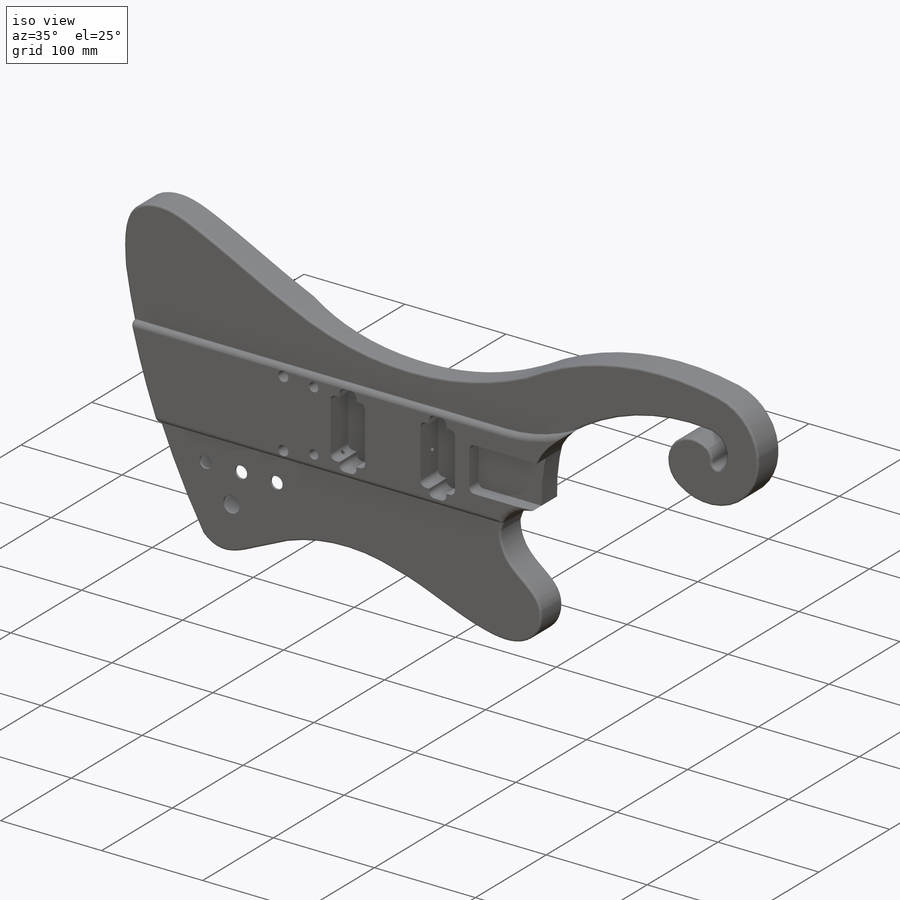
[diagram: iso view]
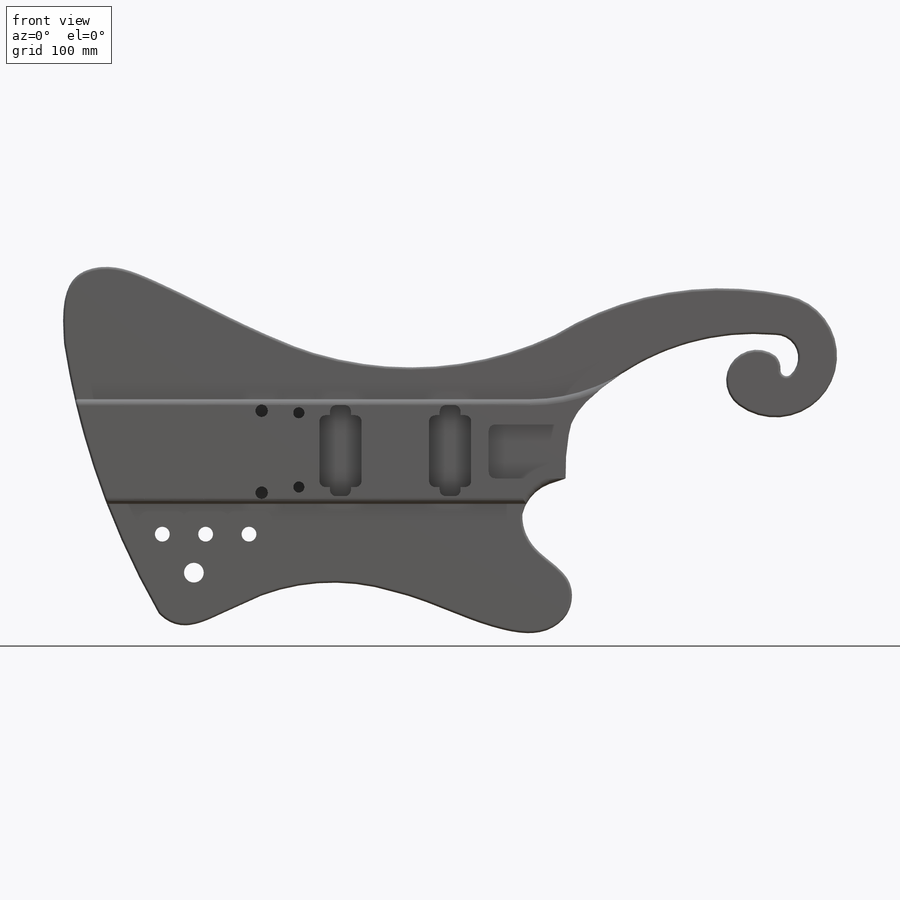
[diagram: front view]
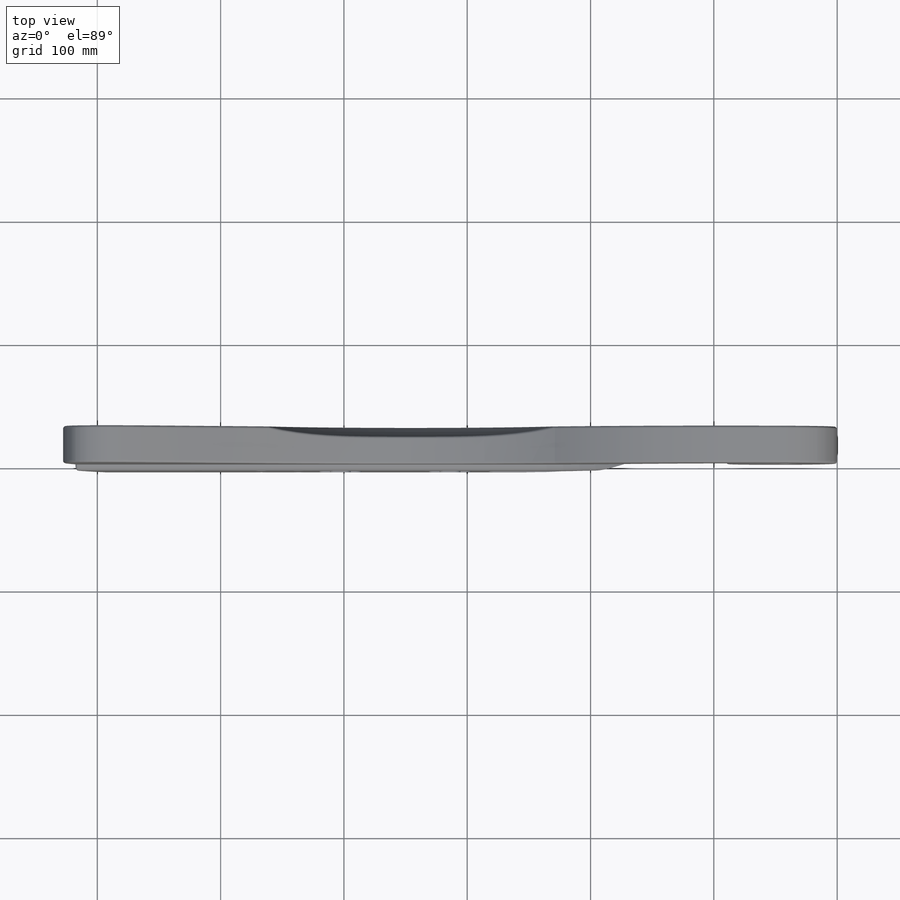
[diagram: top view]
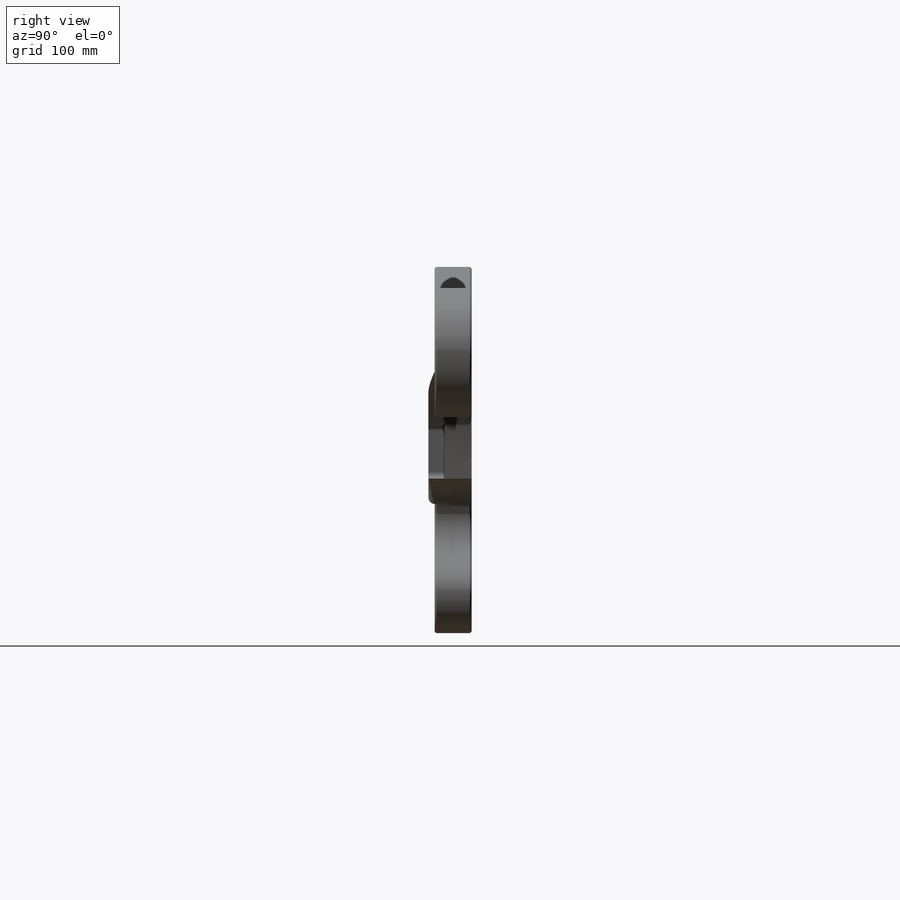
[diagram: right view]
SOLIDWORKS PART (.sldprt)
format: sldprt  version: not decoded by parser v0  size: 1,188,352 bytes
history: native  units: mm
features: sketch x12, extrude x6, cut_extrude x4, fillet x4, material x1, hole x1 (+11 scaffold rows collapsed)
feature tree (39):
  scaffold x11  (default folders/planes/origin — collapsed)
  material  "Mahogany"
  sketch  "Sketch1"  dims[c1.D2=5.0mm c1.D3=5.0mm c1.D4=5.0mm c1.D5=5.0mm c1.D6=5.0mm c1.D7=8.0mm c1.D8=9.0mm c1.D9=6.0mm c1.D10=~271.868362mm c1.D11=~258.078711mm c1.D12=~50.002523mm c1.D13=~25.001261mm c1.D14=~14.192411mm c1.D15=~18.499867mm c1.D16=~635.478987mm c1.D17=~195.203745mm c1.D18=~165.851838mm c1.D19=~34.205996mm c1.D20=~185.267522mm c1.D21=~12.965243mm c1.D22=~13.013087mm c1.D23=~14.247136mm c1.D24=~15.869195mm c1.D25=~9.965243mm c1.D26=~10.013087mm c1.D27=~11.247136mm c1.D28=~12.869195mm c2.D7=8.0mm c2.D8=9.0mm c2.D9=6.0mm c2.D10=~271.868362mm c2.D11=~258.078711mm c2.D12=~50.002523mm c2.D13=~14.192411mm c2.D14=~18.499867mm c2.D15=~635.478987mm c2.D16=~165.851838mm c2.D17=~34.205996mm c2.D18=~185.267522mm c2.D19=~12.965243mm c2.D20=~13.013087mm c2.D21=~14.247136mm c2.D22=~15.869195mm c2.D99=~195.203745mm c2.D102=55.0mm c2.D103=~195.203745mm c2.D105=10.0mm c2.D23=~5.578529mm c2.D24=~14.219995mm c2.D25=~40.16607mm c2.D26=~54.321265mm c2.D27=~69.008297mm c2.D28=~77.649762mm c2.D29=~85.067554mm c2.D30=~86.085478mm c2.D31=~94.521194mm c2.D32=~103.16266mm c2.D33=~114.052749mm c2.D34=~129.077369mm c2.D35=~129.969038mm c2.D36=~144.700184mm c2.D37=~145.558651mm c2.D38=~148.403331mm c2.D39=~154.029008mm c2.D40=~165.195676mm c2.D41=~168.988413mm c2.D42=~171.125716mm c2.D43=~178.019498mm c2.D44=~179.768124mm c2.D45=~181.934761mm c2.D46=~183.416683mm c2.D47=~305.646927mm c2.D48=~320.075889mm c2.D49=~332.496817mm c2.D50=~334.982732mm c2.D51=~339.854026mm c2.D52=~349.889576mm c2.D53=~354.002452mm c2.D54=~358.986955mm c2.D55=~360.521471mm c2.D56=~362.356388mm c2.D57=~401.00008mm c2.D58=~8.974664mm c2.D59=~11.292903mm c2.D60=~19.934368mm c2.D61=~36.599019mm c2.D62=~39.584651mm c2.D63=~42.226814mm c2.D64=~51.471289mm c2.D65=~51.800108mm c2.D66=~53.349022mm c2.D67=~54.739619mm c2.D68=~62.483185mm c2.D69=~66.744488mm c2.D70=~87.002364mm c2.D71=~88.537605mm c2.D72=~90.443064mm c2.D73=~92.270451mm c2.D74=~93.443339mm c2.D75=~93.590908mm c2.D76=~99.260997mm c2.D77=~111.035514mm c2.D78=~124.655442mm c2.D79=~125.99953mm c2.D80=~129.357289mm c2.D81=~129.446766mm c2.D82=~130.085259mm c2.D83=~137.421983mm c2.D84=~139.710715mm c2.D85=~150.049887mm c2.D86=~156.55887mm c2.D87=~157.724628mm c2.D88=~159.356835mm c2.D89=~159.587843mm c2.D90=~164.751714mm c2.D91=~167.006111mm c2.D92=~192.44295mm c2.D93=~192.879936mm c2.D94=~217.141788mm c2.D95=~226.912804mm c3.D23=~5.578529mm c3.D24=~14.219995mm c3.D25=~40.16607mm c3.D26=~54.321265mm c3.D27=~69.008297mm c3.D28=~85.067554mm c3.D29=~94.521194mm c3.D30=~114.052749mm c3.D31=~129.077369mm c3.D32=~129.969038mm c3.D33=~144.700184mm c3.D34=~145.558651mm c3.D35=~148.403331mm c3.D36=~154.029008mm c3.D37=~165.195676mm c3.D38=~168.988413mm c3.D39=~171.125716mm c3.D40=~178.019498mm c3.D41=~181.934761mm c3.D42=~183.416683mm c3.D43=~305.646927mm c3.D44=~339.854026mm c3.D45=~401.00008mm c3.D46=~8.974664mm c3.D47=~36.599019mm c3.D48=~39.584651mm c3.D49=~42.226814mm c3.D50=~51.471289mm c3.D51=~51.800108mm c3.D52=~53.349022mm c3.D53=~66.744488mm c3.D54=~87.002364mm c3.D55=~88.537605mm c3.D56=~90.443064mm c3.D57=~93.443339mm c3.D58=~99.260997mm c3.D59=~111.035514mm c3.D60=~124.655442mm c3.D61=~125.99953mm c3.D62=~129.357289mm c3.D63=~129.446766mm c3.D64=~137.421983mm c3.D65=~139.710715mm c3.D66=~150.049887mm c3.D67=~156.55887mm c3.D68=~157.724628mm c3.D69=~159.356835mm c3.D70=~192.44295mm c3.D71=~192.879936mm c3.D72=~217.141788mm c3.D73=~226.912804mm c3.D74=~26.723956mm c3.D75=~32.568188mm c3.D76=~40.128093mm c3.D77=~42.13718mm c3.D78=~43.771352mm c3.D79=~48.35806mm c3.D80=~68.42916mm c3.D81=~73.260682mm c3.D82=~76.954856mm c3.D83=~77.348202mm c3.D84=~78.464711mm c3.D85=~86.929027mm c3.D86=~88.500261mm c3.D87=~98.181518mm c3.D88=~105.428894mm c3.D89=~128.642463mm c3.D90=~130.28158mm c3.D91=~137.359396mm c3.D92=~151.856031mm c3.D93=~152.667077mm c3.D94=~160.607955mm c3.D95=~162.220638mm c3.D96=~195.951419mm c3.D97=~350.926606mm c3.D98=~4.184071mm c3.D99=~11.000447mm c3.D100=~14.714739mm c3.D101=~18.098924mm c3.D102=~22.708736mm c3.D103=~25.505894mm c3.D104=~30.591726mm c3.D105=~31.334554mm c3.D106=~39.969213mm c3.D107=~42.013267mm c3.D108=~45.013267mm c3.D109=~47.707006mm c3.D110=~49.655978mm c3.D111=~54.843932mm c3.D112=~57.542252mm c3.D113=~60.54989mm c3.D114=~61.909775mm c3.D115=~62.249509mm c3.D116=~63.896645mm c3.D117=~66.226736mm c3.D118=~88.771362mm c3.D119=~88.998455mm c3.D120=~89.964465mm c3.D121=~96.778743mm c3.D122=~96.836928mm c3.D123=~98.721805mm c3.D124=~99.380976mm c3.D125=~99.957174mm c3.D126=~102.008738mm c3.D127=~102.957174mm c3.D128=~105.896419mm c3.D129=~114.817933mm c3.D130=~115.029902mm c3.D131=~118.355809mm c3.D132=~119.060849mm c3.D133=~120.556839mm c3.D134=~129.798677mm c3.D135=~133.754445mm c3.D136=~261.361784mm c4.D74=~26.723956mm c4.D75=~40.128093mm c4.D76=~42.13718mm c4.D77=~43.771352mm c4.D78=~98.181518mm c4.D79=~105.428894mm c4.D80=~128.642463mm c4.D81=~130.28158mm c4.D82=~151.856031mm c4.D83=~152.667077mm c4.D84=~160.607955mm c4.D85=~162.220638mm c4.D86=~4.184071mm c4.D87=~18.098924mm c4.D88=~22.708736mm c4.D89=~25.505894mm c4.D90=~42.013267mm c4.D91=~49.655978mm c4.D92=~66.226736mm c4.D93=~96.836928mm c4.D94=~115.029902mm c4.D95=~118.355809mm c4.D96=~119.060849mm c4.D97=~129.798677mm c4.D98=~133.754445mm c4.D99=~117.394895mm c4.D100=~179.768124mm c4.D101=~320.075889mm c4.D102=~332.496817mm c4.D103=~334.982732mm c4.D104=~349.889576mm c4.D105=~354.002452mm c4.D106=~358.986955mm c4.D107=~360.521471mm c4.D108=~362.356388mm c5.D99=~117.394895mm c5.D100=~320.075889mm c5.D101=~334.982732mm c5.D102=~32.568188mm c5.D103=~11.000447mm c6.D102=~11.000447mm c6.D104=~179.768124mm c6.D105=~183.950398mm c6.D106=~196.430503mm c6.D107=~234.768124mm c6.D108=~332.496817mm c7.D104=~11.531107mm c7.D105=~32.568188mm c7.D106=~50.967471mm c7.D107=~11.000447mm c7.D108=~88.998455mm c8.D104=~66.480088mm c8.D106=~153.459074mm c8.D107=~54.461424mm c8.D108=5.0mm c8.D1=3.0mm]
  extrude  "body"  Depth=30mm
  sketch  "Sketch4"  dims[D1=10.0mm D2=9.0mm]
  extrude  "holes1"  Depth=10mm
  sketch  "Sketch5"  dims[D1=~43.568634mm]
  extrude  "neck"  Depth=22mm
  sketch  "Sketch6"
  extrude  "magnets"  Depth=10mm
  sketch  "Sketch8"  dims[c1.D1=5.0mm c1.D2=9.0mm c1.D3=~75.471155mm c1.D4=~34.205996mm c1.D6=~142.616698mm c1.D5=~88.942665mm c2.D6=~97.58413mm c2.D7=~114.455563mm c2.D8=~123.097028mm c2.D9=~167.564502mm c2.D10=~167.748532mm c2.D11=~197.953867mm c2.D12=~221.574053mm c2.D13=~172.386004mm c2.D14=~198.308541mm c2.D5=~4.864025mm c3.D6=~57.578952mm c3.D7=~80.012403mm c3.D8=~96.065065mm c3.D1=~88.942665mm c3.D9=~97.58413mm c3.D10=~114.455563mm c3.D11=~123.097028mm c4.D1=~88.942665mm c4.D3=~22.236325mm]
  extrude  "step"  Depth=5mm
  sketch  "Sketch12"  dims[D1=~3.078137mm]
  cut_extrude  "Cut-Extrude2"  Depth=60mm
  sketch  "Sketch18"  dims[D1=5.0mm]
  extrude  "Boss-Extrude3"  Depth=28mm
  sketch  "Sketch21"  dims[D1=5.0mm]
  cut_extrude  "Cut-Extrude4"  Depth=28mm
  sketch  "Sketch22"  dims[D1=~6.031601mm]
  cut_extrude  "Cut-Extrude8"  Depth=100mm
  hole  "Ø4.0 (4) Diameter Hole2"  Diameter=4mm Depth=45mm
  sketch  "3DSketch2"
  sketch  "Sketch23"  dims[hole-wizard template sketch: 47 standard entries collapsed; hole parameters kept: c15.Hole Depth=45.0mm c15.D3=~14.816244mm c15.Drill Angle=118.0deg]
  fillet  "Fillet1"  Radius=2mm
  sketch  "Sketch24"  dims[c1.D1=~126.945085mm c1.D2=~135.537522mm c2.D1=~131.268792mm c2.D3=~302.249259mm c2.D4=~304.472038mm c2.D5=~331.019241mm c3.D3=~302.249259mm c3.D4=~304.472038mm c3.D1=~233.481528mm]
  cut_extrude  "Cut-Extrude9"  Depth=7.5mm
  fillet  "Fillet3"  Radius=130mm
  fillet  "Fillet4"  Radius=2mm
  fillet  "Fillet5"  Radius=5mm
decode coverage: 25 of 27 modeling features carry decoded parameters
note: ~ marks probable driven/reference dimensions
note: suppression state not decoded; provenance and decode notes live in map.json
